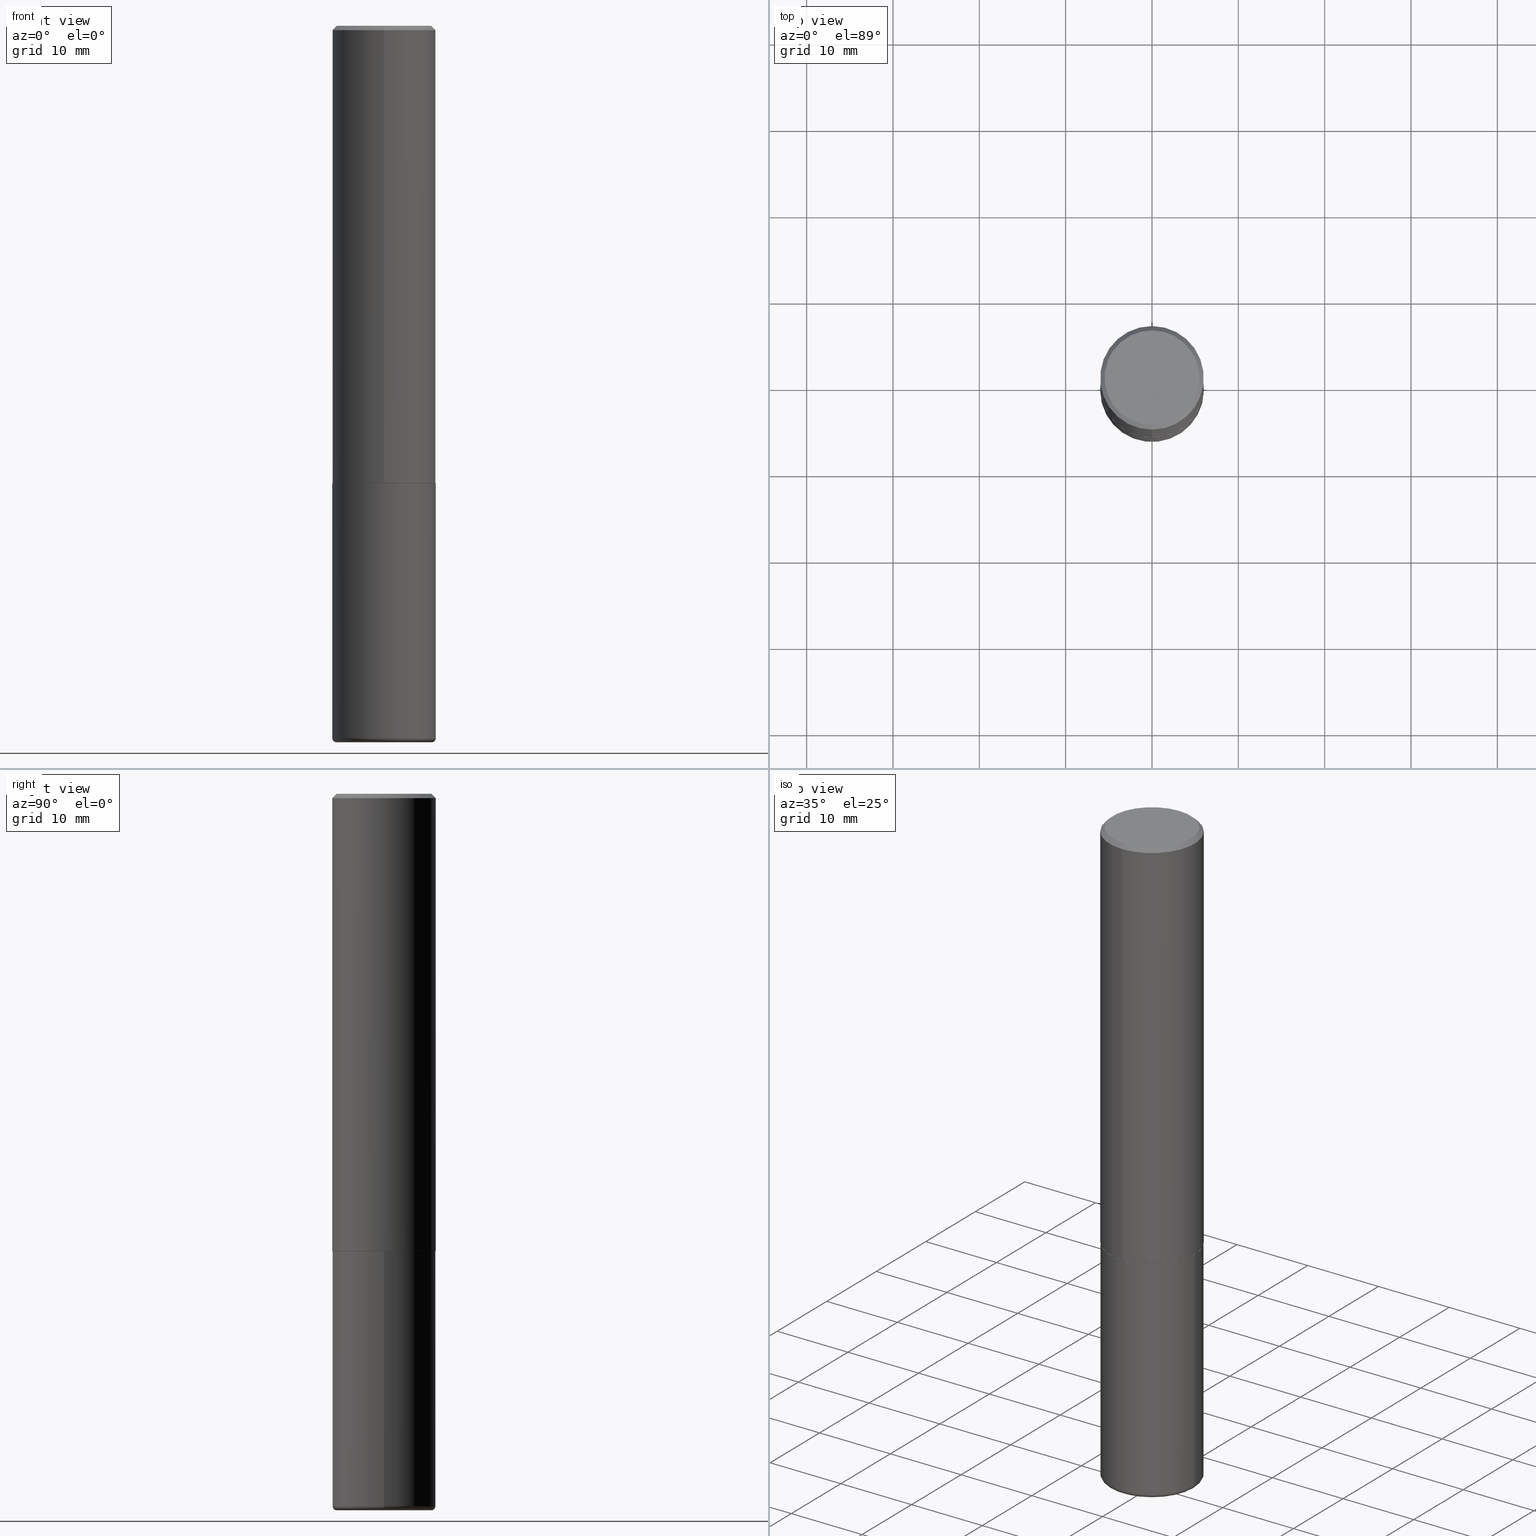
[diagram: canonical four-view strip — front | top / right | iso, engineering-drawing reading convention]
A machine part, canonical four-view strip (front | top / right | iso — engineering-drawing reading convention). The complete STEP part file that produces these views, byte-faithful:
ISO-10303-21;
HEADER;
FILE_DESCRIPTION (( 'STEP AP203' ),
    '1' );
FILE_NAME ('74436.STEP',
    '2024-03-06T15:13:54',
    ( '' ),
    ( '' ),
    'SwSTEP 2.0',
    'SolidWorks 2023',
    '' );
FILE_SCHEMA (( 'CONFIG_CONTROL_DESIGN' ));
ENDSEC;

DATA;
#1 = DATE_AND_TIME ( #290, #258 ) ;
#2 = DIRECTION ( 'NONE',  ( -2.445143257281760563E-29, 3.491947543401872647E-15, 1.000000000000000000 ) ) ;
#3 = DIRECTION ( 'NONE',  ( -1.000000000000000000, 6.982962677686265922E-15, -4.876176775795935793E-29 ) ) ;
#4 = EDGE_CURVE ( 'NONE', #381, #142, #44, .T. ) ;
#5 = DATE_TIME_ROLE ( 'classification_date' ) ;
#6 = DIRECTION ( 'NONE',  ( 6.982962677686265922E-15, 1.000000000000000000, -3.491947543401873041E-15 ) ) ;
#7 = PLANE ( 'NONE',  #184 ) ;
#8 = DIRECTION ( 'NONE',  ( -6.982962677686266711E-15, -1.000000000000000000, 3.491481338843145583E-15 ) ) ;
#9 = ORIENTED_EDGE ( 'NONE', *, *, #202, .T. ) ;
#10 = CC_DESIGN_DATE_AND_TIME_ASSIGNMENT ( #235, #5, ( #307 ) ) ;
#11 = AXIS2_PLACEMENT_3D ( 'NONE', #412, #222, #58 ) ;
#12 = VECTOR ( 'NONE', #373, 39.37007874015748143 ) ;
#13 = ORIENTED_EDGE ( 'NONE', *, *, #16, .F. ) ;
#14 = APPROVAL_STATUS ( 'not_yet_approved' ) ;
#15 = VERTEX_POINT ( 'NONE', #399 ) ;
#16 = EDGE_CURVE ( 'NONE', #340, #116, #364, .T. ) ;
#17 = APPLICATION_CONTEXT ( 'configuration controlled 3d designs of mechanical parts and assemblies' ) ;
#18 = ORIENTED_EDGE ( 'NONE', *, *, #283, .F. ) ;
#19 = CIRCLE ( 'NONE', #302, 0.2361999999999999933 ) ;
#20 = PERSON_AND_ORGANIZATION ( #150, #234 ) ;
#21 = DIRECTION ( 'NONE',  ( -6.982962677686265922E-15, -1.000000000000000000, 3.469747663417773452E-15 ) ) ;
#22 = CALENDAR_DATE ( 2024, 6, 3 ) ;
#23 = ORIENTED_EDGE ( 'NONE', *, *, #60, .F. ) ;
#24 = CARTESIAN_POINT ( 'NONE',  ( 1.579546157692632438E-15, 0.2161999999999996980, -5.072845410320630762E-16 ) ) ;
#25 = CARTESIAN_POINT ( 'NONE',  ( -0.2361999999999999933, -7.634526233230966520E-15, -2.086600000000000232 ) ) ;
#26 = VECTOR ( 'NONE', #225, 39.37007874015748143 ) ;
#27 = ORIENTED_EDGE ( 'NONE', *, *, #360, .T. ) ;
#28 = DIRECTION ( 'NONE',  ( 1.000000000000000000, -6.982962677686265133E-15, 0.000000000000000000 ) ) ;
#29 = CARTESIAN_POINT ( 'NONE',  ( 5.102715210985906276E-29, -7.285324961630107416E-15, -2.086600000000000232 ) ) ;
#30 = EDGE_CURVE ( 'NONE', #15, #281, #240, .T. ) ;
#31 = EDGE_LOOP ( 'NONE', ( #158, #145, #130, #156 ) ) ;
#32 = CONICAL_SURFACE ( 'NONE', #366, 0.2361999999999999655, 0.7853981633974473908 ) ;
#33 = APPROVAL_DATE_TIME ( #152, #140 ) ;
#34 = CARTESIAN_POINT ( 'NONE',  ( -1.642392821791758643E-15, -0.2352000000000072644, -2.086599999999998900 ) ) ;
#35 = FACE_OUTER_BOUND ( 'NONE', #301, .T. ) ;
#36 = CARTESIAN_POINT ( 'NONE',  ( 0.2164999999999999980, -1.292092499065682533E-14, -3.267700000000000937 ) ) ;
#37 = PERSON_AND_ORGANIZATION ( #150, #234 ) ;
#38 = AXIS2_PLACEMENT_3D ( 'NONE', #89, #408, #80 ) ;
#39 = CARTESIAN_POINT ( 'NONE',  ( 5.102035920644121054E-29, -7.286297744062347012E-15, -2.086599999999999788 ) ) ;
#40 = CC_DESIGN_PERSON_AND_ORGANIZATION_ASSIGNMENT ( #323, #141, ( #129 ) ) ;
#41 = EDGE_LOOP ( 'NONE', ( #182, #335 ) ) ;
#42 = LINE ( 'NONE', #212, #162 ) ;
#43 = DIRECTION ( 'NONE',  ( -2.445143257281760563E-29, 3.491947543401872647E-15, 1.000000000000000000 ) ) ;
#44 = CIRCLE ( 'NONE', #353, 0.01970000000000016877 ) ;
#45 = AXIS2_PLACEMENT_3D ( 'NONE', #269, #306, #81 ) ;
#46 = VERTEX_POINT ( 'NONE', #75 ) ;
#47 = DIRECTION ( 'NONE',  ( 2.438088387897960049E-29, -3.491481338843145188E-15, -1.000000000000000000 ) ) ;
#48 = EDGE_CURVE ( 'NONE', #367, #116, #213, .T. ) ;
#49 = CARTESIAN_POINT ( 'NONE',  ( 0.2361999999999999933, -1.649375784469496131E-15, 1.151752954443000088E-29 ) ) ;
#50 = CARTESIAN_POINT ( 'NONE',  ( -0.2362000000000000766, -9.662029446697182017E-15, -3.248000000000000220 ) ) ;
#51 = AXIS2_PLACEMENT_3D ( 'NONE', #291, #2, #203 ) ;
#52 = APPROVAL_PERSON_ORGANIZATION ( #232, #239, #74 ) ;
#53 = DIMENSIONAL_EXPONENTS ( 1.000000000000000000, 0.000000000000000000, 0.000000000000000000, 0.000000000000000000, 0.000000000000000000, 0.000000000000000000, 0.000000000000000000 ) ;
#54 = ORIENTED_EDGE ( 'NONE', *, *, #266, .F. ) ;
#55 = DIRECTION ( 'NONE',  ( 1.000000000000000000, -6.982962677686267499E-15, 0.000000000000000000 ) ) ;
#56 = ADVANCED_FACE ( 'NONE', ( #223 ), #186, .T. ) ;
#57 = CARTESIAN_POINT ( 'NONE',  ( 7.942882682489324976E-29, -1.134033138856253841E-14, -3.248000000000000220 ) ) ;
#58 = DIRECTION ( 'NONE',  ( -6.982962677686265922E-15, -1.000000000000000000, 3.491947543401872647E-15 ) ) ;
#59 = LOCAL_TIME ( 10, 13, 54.00000000000000000, #386 ) ;
#60 = EDGE_CURVE ( 'NONE', #46, #281, #64, .T. ) ;
#61 = DIRECTION ( 'NONE',  ( -6.982962677686265133E-15, -1.000000000000000000, 3.484499991918703113E-15 ) ) ;
#62 = DIRECTION ( 'NONE',  ( -6.982962677686265133E-15, -1.000000000000000000, 3.484499991918703113E-15 ) ) ;
#63 = DIRECTION ( 'NONE',  ( -2.445143257281760563E-29, 3.491947543401872647E-15, 1.000000000000000000 ) ) ;
#64 = CIRCLE ( 'NONE', #393, 0.2361999999999999655 ) ;
#65 = TOROIDAL_SURFACE ( 'NONE', #38, 0.2164999999999999980, 0.01970000000000016877 ) ;
#66 = CALENDAR_DATE ( 2024, 6, 3 ) ;
#67 = FACE_OUTER_BOUND ( 'NONE', #220, .T. ) ;
#68 = FACE_OUTER_BOUND ( 'NONE', #110, .T. ) ;
#69 = DATE_TIME_ROLE ( 'creation_date' ) ;
#70 = CARTESIAN_POINT ( 'NONE',  ( 7.942882682489324976E-29, -1.134033138856253841E-14, -3.248000000000000220 ) ) ;
#71 = CIRCLE ( 'NONE', #286, 0.2361999999999999933 ) ;
#72 = ADVANCED_FACE ( 'NONE', ( #318 ), #161, .T. ) ;
#73 = ORIENTED_EDGE ( 'NONE', *, *, #376, .F. ) ;
#74 = APPROVAL_ROLE ( '' ) ;
#75 = CARTESIAN_POINT ( 'NONE',  ( 1.649375784469496131E-15, 0.2361999999999998823, -0.02000000000000087472 ) ) ;
#76 = APPLICATION_CONTEXT ( 'configuration controlled 3d designs of mechanical parts and assemblies' ) ;
#77 = APPLICATION_PROTOCOL_DEFINITION ( 'international standard', 'config_control_design', 1994, #17 ) ;
#78 = ORIENTED_EDGE ( 'NONE', *, *, #170, .F. ) ;
#79 = ORIENTED_EDGE ( 'NONE', *, *, #344, .T. ) ;
#80 = DIRECTION ( 'NONE',  ( 1.000000000000000000, -6.982962677686267499E-15, 4.883557194083113462E-29 ) ) ;
#81 = DIRECTION ( 'NONE',  ( 1.000000000000000000, 0.000000000000000000, 0.000000000000000000 ) ) ;
#82 = ORIENTED_EDGE ( 'NONE', *, *, #299, .T. ) ;
#83 = DIRECTION ( 'NONE',  ( -6.982962677686265922E-15, -1.000000000000000000, 3.487819265831412139E-15 ) ) ;
#84 = EDGE_CURVE ( 'NONE', #381, #181, #128, .T. ) ;
#85 = ORIENTED_EDGE ( 'NONE', *, *, #376, .T. ) ;
#86 = CARTESIAN_POINT ( 'NONE',  ( -0.2164999999999999980, -9.802006365641922115E-15, -3.248000000000000220 ) ) ;
#87 = DIRECTION ( 'NONE',  ( -2.445143257281760563E-29, 3.491947543401872647E-15, 1.000000000000000000 ) ) ;
#88 = EDGE_CURVE ( 'NONE', #190, #107, #191, .T. ) ;
#89 = CARTESIAN_POINT ( 'NONE',  ( 7.942882682489324976E-29, -1.134033138856253841E-14, -3.248000000000000220 ) ) ;
#90 = CLOSED_SHELL ( 'NONE', ( #244, #218, #270, #118, #124, #396 ) ) ;
#91 = CC_DESIGN_APPROVAL ( #140, ( #329 ) ) ;
#92 = APPROVAL_PERSON_ORGANIZATION ( #361, #338, #101 ) ;
#93 = EDGE_LOOP ( 'NONE', ( #245, #85, #9, #23 ) ) ;
#94 = DIRECTION ( 'NONE',  ( 1.000000000000000000, -6.982962677686266711E-15, 4.876176775795936353E-29 ) ) ;
#95 = PERSON_AND_ORGANIZATION ( #150, #234 ) ;
#96 = PLANE ( 'NONE',  #371 ) ;
#97 = PLANE ( 'NONE',  #179 ) ;
#98 = AXIS2_PLACEMENT_3D ( 'NONE', #332, #43, #21 ) ;
#99 = CONICAL_SURFACE ( 'NONE', #400, 0.2361999999999999655, 0.7853981633974473908 ) ;
#100 = ORIENTED_EDGE ( 'NONE', *, *, #169, .F. ) ;
#101 = APPROVAL_ROLE ( '' ) ;
#102 = PLANE ( 'NONE',  #185 ) ;
#103 = FACE_OUTER_BOUND ( 'NONE', #372, .T. ) ;
#104 = ADVANCED_FACE ( 'NONE', ( #341 ), #410, .T. ) ;
#105 = DIRECTION ( 'NONE',  ( 1.000000000000000000, -6.982962677686268288E-15, 0.000000000000000000 ) ) ;
#106 = VECTOR ( 'NONE', #368, 39.37007874015748143 ) ;
#107 = VERTEX_POINT ( 'NONE', #151 ) ;
#108 = VECTOR ( 'NONE', #131, 39.37007874015748143 ) ;
#109 = CARTESIAN_POINT ( 'NONE',  ( 1.671196514507806268E-15, 0.2351999999999927204, -2.086600000000000676 ) ) ;
#110 = EDGE_LOOP ( 'NONE', ( #401, #310, #54, #177 ) ) ;
#111 = MECHANICAL_CONTEXT ( 'NONE', #76, 'mechanical' ) ;
#112 = VERTEX_POINT ( 'NONE', #24 ) ;
#113 = DIRECTION ( 'NONE',  ( 1.000000000000000000, -6.982962677686267499E-15, 0.000000000000000000 ) ) ;
#114 = ORIENTED_EDGE ( 'NONE', *, *, #197, .T. ) ;
#115 = AXIS2_PLACEMENT_3D ( 'NONE', #121, #416, #251 ) ;
#116 = VERTEX_POINT ( 'NONE', #276 ) ;
#117 = LENGTH_MEASURE_WITH_UNIT ( LENGTH_MEASURE( 0.02539999999999999897 ), #402 );
#118 = ADVANCED_FACE ( 'NONE', ( #253 ), #311, .T. ) ;
#119 = LINE ( 'NONE', #382, #339 ) ;
#120 = ORIENTED_EDGE ( 'NONE', *, *, #60, .T. ) ;
#121 = CARTESIAN_POINT ( 'NONE',  ( 4.890286514563534438E-31, -6.983895086803762550E-17, -0.02000000000000005246 ) ) ;
#122 = VECTOR ( 'NONE', #166, 39.37007874015748143 ) ;
#123 = FACE_OUTER_BOUND ( 'NONE', #289, .T. ) ;
#124 = ADVANCED_FACE ( 'NONE', ( #159 ), #65, .T. ) ;
#125 = DIRECTION ( 'NONE',  ( 1.000000000000000000, -6.982962677686266711E-15, 4.876176775795936353E-29 ) ) ;
#126 = VERTEX_POINT ( 'NONE', #50 ) ;
#127 = DIRECTION ( 'NONE',  ( -1.000000000000000000, 7.105427357600963993E-15, 0.000000000000000000 ) ) ;
#128 = CIRCLE ( 'NONE', #263, 0.2164999999999999980 ) ;
#129 = PRODUCT_DEFINITION_FORMATION_WITH_SPECIFIED_SOURCE ( 'ANY', '', #351, .NOT_KNOWN. ) ;
#130 = ORIENTED_EDGE ( 'NONE', *, *, #183, .F. ) ;
#131 = DIRECTION ( 'NONE',  ( 4.937700262164543309E-15, 0.7071067811865444641, -0.7071067811865505703 ) ) ;
#132 = EDGE_CURVE ( 'NONE', #116, #46, #119, .T. ) ;
#133 = CARTESIAN_POINT ( 'NONE',  ( -1.649375784469446630E-15, -0.2362000000000075151, -2.085599999999999010 ) ) ;
#134 = COORDINATED_UNIVERSAL_TIME_OFFSET ( 5, 0, .BEHIND. ) ;
#135 = FACE_OUTER_BOUND ( 'NONE', #41, .T. ) ;
#136 = MANIFOLD_SOLID_BREP ( 'Body-Move/Copy2[2]', #285 ) ;
#137 = TOROIDAL_SURFACE ( 'NONE', #221, 0.2164999999999999980, 0.01970000000000016877 ) ;
#138 = PERSON_AND_ORGANIZATION_ROLE ( 'classification_officer' ) ;
#139 = FACE_OUTER_BOUND ( 'NONE', #31, .T. ) ;
#140 = APPROVAL ( #14, 'UNSPECIFIED' ) ;
#141 = PERSON_AND_ORGANIZATION_ROLE ( 'creator' ) ;
#142 = VERTEX_POINT ( 'NONE', #155 ) ;
#143 = DIRECTION ( 'NONE',  ( -2.445468806185136877E-29, 3.491481338843145188E-15, 1.000000000000000000 ) ) ;
#144 = APPROVAL_ROLE ( '' ) ;
#145 = ORIENTED_EDGE ( 'NONE', *, *, #170, .T. ) ;
#146 = LINE ( 'NONE', #49, #12 ) ;
#147 = CIRCLE ( 'NONE', #207, 0.2361999999999999933 ) ;
#148 = CC_DESIGN_PERSON_AND_ORGANIZATION_ASSIGNMENT ( #95, #288, ( #329 ) ) ;
#149 = PERSON_AND_ORGANIZATION_ROLE ( 'design_owner' ) ;
#150 = PERSON ( 'UNSPECIFIED', 'UNSPECIFIED', 'UNSPECIFIED', ('UNSPECIFIED'), ('UNSPECIFIED'), ('UNSPECIFIED') ) ;
#151 = CARTESIAN_POINT ( 'NONE',  ( 0.2361999999999999933, -8.934700746099602364E-15, -2.086600000000000232 ) ) ;
#152 = DATE_AND_TIME ( #22, #59 ) ;
#153 = ORIENTED_EDGE ( 'NONE', *, *, #417, .F. ) ;
#154 = DIRECTION ( 'NONE',  ( 1.000000000000000000, -6.982962677686265133E-15, 0.000000000000000000 ) ) ;
#155 = CARTESIAN_POINT ( 'NONE',  ( 0.2362000000000000766, -1.298970717303203651E-14, -3.248000000000000220 ) ) ;
#156 = ORIENTED_EDGE ( 'NONE', *, *, #4, .F. ) ;
#157 = DIRECTION ( 'NONE',  ( -2.445143257281760563E-29, 3.491947543401872647E-15, 1.000000000000000000 ) ) ;
#158 = ORIENTED_EDGE ( 'NONE', *, *, #84, .T. ) ;
#159 = FACE_OUTER_BOUND ( 'NONE', #409, .T. ) ;
#160 = LINE ( 'NONE', #395, #108 ) ;
#161 = CONICAL_SURFACE ( 'NONE', #313, 0.2351999999999999924, 0.7853981633976704346 ) ;
#162 = VECTOR ( 'NONE', #143, 39.37007874015748143 ) ;
#163 = PRODUCT_RELATED_PRODUCT_CATEGORY ( 'detail', '', ( #351 ) ) ;
#164 = ADVANCED_FACE ( 'NONE', ( #123 ), #315, .T. ) ;
#165 = APPROVAL_DATE_TIME ( #292, #338 ) ;
#166 = DIRECTION ( 'NONE',  ( -4.937700262165644559E-15, -0.7071067811867021158, 0.7071067811863929187 ) ) ;
#167 = DIRECTION ( 'NONE',  ( -2.445468806185136597E-29, 3.491481338843145583E-15, 1.000000000000000000 ) ) ;
#168 = FACE_OUTER_BOUND ( 'NONE', #248, .T. ) ;
#169 = EDGE_CURVE ( 'NONE', #281, #46, #380, .T. ) ;
#170 = EDGE_CURVE ( 'NONE', #181, #126, #330, .T. ) ;
#171 = AXIS2_PLACEMENT_3D ( 'NONE', #362, #63, #295 ) ;
#172 = LOCAL_TIME ( 10, 13, 54.00000000000000000, #363 ) ;
#173 = DATE_AND_TIME ( #260, #388 ) ;
#174 = DIRECTION ( 'NONE',  ( -6.982962677686265922E-15, -1.000000000000000000, 3.491947543401873041E-15 ) ) ;
#175 = COORDINATED_UNIVERSAL_TIME_OFFSET ( 5, 0, .BEHIND. ) ;
#176 = CARTESIAN_POINT ( 'NONE',  ( 0.2164999999999999980, -1.285214280828161572E-14, -3.248000000000000220 ) ) ;
#177 = ORIENTED_EDGE ( 'NONE', *, *, #406, .F. ) ;
#178 = CARTESIAN_POINT ( 'NONE',  ( -1.620449627073634881E-15, -0.2362000000000000210, -0.01999999999999922673 ) ) ;
#179 = AXIS2_PLACEMENT_3D ( 'NONE', #196, #319, #6 ) ;
#180 = PERSON_AND_ORGANIZATION ( #150, #234 ) ;
#181 = VERTEX_POINT ( 'NONE', #224 ) ;
#182 = ORIENTED_EDGE ( 'NONE', *, *, #360, .F. ) ;
#183 = EDGE_CURVE ( 'NONE', #142, #126, #71, .T. ) ;
#184 = AXIS2_PLACEMENT_3D ( 'NONE', #349, #47, #216 ) ;
#185 = AXIS2_PLACEMENT_3D ( 'NONE', #259, #201, #3 ) ;
#186 = CYLINDRICAL_SURFACE ( 'NONE', #11, 0.2362000000000001043 ) ;
#187 = ORIENTED_EDGE ( 'NONE', *, *, #88, .F. ) ;
#188 = DIRECTION ( 'NONE',  ( -2.445143257281760563E-29, 3.491947543401872647E-15, 1.000000000000000000 ) ) ;
#189 = DIRECTION ( 'NONE',  ( -2.445468806185136597E-29, 3.491481338843145583E-15, 1.000000000000000000 ) ) ;
#190 = VERTEX_POINT ( 'NONE', #25 ) ;
#191 = CIRCLE ( 'NONE', #250, 0.2361999999999999933 ) ;
#192 = DIRECTION ( 'NONE',  ( -2.445143257281760843E-29, 3.491947543401873041E-15, 1.000000000000000000 ) ) ;
#193 = AXIS2_PLACEMENT_3D ( 'NONE', #86, #219, #127 ) ;
#194 = VERTEX_POINT ( 'NONE', #280 ) ;
#195 = CARTESIAN_POINT ( 'NONE',  ( 7.991058417971172834E-29, -1.140911357093774960E-14, -3.267700000000000937 ) ) ;
#196 = CARTESIAN_POINT ( 'NONE',  ( 1.509716530915768548E-15, 0.2161999999999996980, -6.311217999577736163E-16 ) ) ;
#197 = EDGE_CURVE ( 'NONE', #126, #142, #19, .T. ) ;
#198 = LINE ( 'NONE', #34, #122 ) ;
#199 = CIRCLE ( 'NONE', #171, 0.2161999999999996980 ) ;
#200 = CALENDAR_DATE ( 2024, 6, 3 ) ;
#201 = DIRECTION ( 'NONE',  ( 2.438088387897960049E-29, -3.491481338843145188E-15, -1.000000000000000000 ) ) ;
#202 = EDGE_CURVE ( 'NONE', #367, #281, #282, .T. ) ;
#203 = DIRECTION ( 'NONE',  ( -6.982962677686265133E-15, -1.000000000000000000, 3.484499991918703113E-15 ) ) ;
#204 = APPROVAL_STATUS ( 'not_yet_approved' ) ;
#205 = PRODUCT_DEFINITION_SHAPE ( 'NONE', 'NONE',  #329 ) ;
#206 = DIRECTION ( 'NONE',  ( 1.000000000000000000, -6.982962677686267499E-15, 4.883557194083113462E-29 ) ) ;
#207 = AXIS2_PLACEMENT_3D ( 'NONE', #324, #167, #356 ) ;
#208 = ORIENTED_EDGE ( 'NONE', *, *, #169, .T. ) ;
#209 = DIRECTION ( 'NONE',  ( 5.024295867789177050E-15, 0.7071067811867068897, 0.7071067811863879227 ) ) ;
#210 = ADVANCED_BREP_SHAPE_REPRESENTATION ( '74436', ( #413, #136, #45 ), #411 ) ;
#211 = ADVANCED_FACE ( 'NONE', ( #287 ), #97, .F. ) ;
#212 = CARTESIAN_POINT ( 'NONE',  ( -0.2361999999999999933, 1.678301941865356591E-15, -1.161852468318208757E-29 ) ) ;
#213 = CIRCLE ( 'NONE', #98, 0.2362000000000002431 ) ;
#214 = ORIENTED_EDGE ( 'NONE', *, *, #132, .T. ) ;
#215 = AXIS2_PLACEMENT_3D ( 'NONE', #407, #246, #113 ) ;
#216 = DIRECTION ( 'NONE',  ( -1.000000000000000000, 6.982962677686265922E-15, -4.876176775795935793E-29 ) ) ;
#217 = ORIENTED_EDGE ( 'NONE', *, *, #16, .T. ) ;
#218 = ADVANCED_FACE ( 'NONE', ( #139 ), #137, .T. ) ;
#219 = DIRECTION ( 'NONE',  ( 7.105427357601001859E-15, 1.000000000000000000, -3.491481338843145583E-15 ) ) ;
#220 = EDGE_LOOP ( 'NONE', ( #238, #378 ) ) ;
#221 = AXIS2_PLACEMENT_3D ( 'NONE', #70, #389, #206 ) ;
#222 = DIRECTION ( 'NONE',  ( -2.445143257281760563E-29, 3.491947543401872647E-15, 1.000000000000000000 ) ) ;
#223 = FACE_OUTER_BOUND ( 'NONE', #93, .T. ) ;
#224 = CARTESIAN_POINT ( 'NONE',  ( -0.2164999999999999980, -9.766408997357155292E-15, -3.267700000000000937 ) ) ;
#225 = DIRECTION ( 'NONE',  ( -2.445143257281760843E-29, 3.491947543401873041E-15, 1.000000000000000000 ) ) ;
#226 = CIRCLE ( 'NONE', #346, 0.2161999999999996980 ) ;
#227 = CC_DESIGN_DATE_AND_TIME_ASSIGNMENT ( #173, #69, ( #329 ) ) ;
#228 = CARTESIAN_POINT ( 'NONE',  ( 4.890286514563534438E-31, -6.983895086803762550E-17, -0.02000000000000005246 ) ) ;
#229 = CARTESIAN_POINT ( 'NONE',  ( 5.102035920644122175E-29, -7.286297744062347012E-15, -2.086600000000000232 ) ) ;
#230 = COORDINATED_UNIVERSAL_TIME_OFFSET ( 5, 0, .BEHIND. ) ;
#231 = EDGE_LOOP ( 'NONE', ( #13, #79, #342, #73 ) ) ;
#232 = PERSON_AND_ORGANIZATION ( #150, #234 ) ;
#233 = DIRECTION ( 'NONE',  ( 6.982962677686265922E-15, 1.000000000000000000, -3.487819265831412139E-15 ) ) ;
#234 = ORGANIZATION ( 'UNSPECIFIED', 'UNSPECIFIED', '' ) ;
#235 = DATE_AND_TIME ( #200, #172 ) ;
#236 = DIRECTION ( 'NONE',  ( -2.445143257281760563E-29, 3.491947543401872647E-15, 1.000000000000000000 ) ) ;
#237 = DIRECTION ( 'NONE',  ( -2.445143257281760563E-29, 3.491947543401872647E-15, 1.000000000000000000 ) ) ;
#238 = ORIENTED_EDGE ( 'NONE', *, *, #266, .T. ) ;
#239 = APPROVAL ( #300, 'UNSPECIFIED' ) ;
#240 = LINE ( 'NONE', #178, #106 ) ;
#241 = EDGE_CURVE ( 'NONE', #112, #46, #160, .T. ) ;
#242 = ORIENTED_EDGE ( 'NONE', *, *, #283, .T. ) ;
#243 = ORIENTED_EDGE ( 'NONE', *, *, #48, .F. ) ;
#244 = ADVANCED_FACE ( 'NONE', ( #68 ), #320, .T. ) ;
#245 = ORIENTED_EDGE ( 'NONE', *, *, #132, .F. ) ;
#246 = DIRECTION ( 'NONE',  ( -2.445468806185136597E-29, 3.491481338843145583E-15, 1.000000000000000000 ) ) ;
#247 = LOCAL_TIME ( 10, 13, 54.00000000000000000, #175 ) ;
#248 = EDGE_LOOP ( 'NONE', ( #305, #153 ) ) ;
#249 = CARTESIAN_POINT ( 'NONE',  ( 4.890286514563534438E-31, -6.983895086803762550E-17, -0.02000000000000005246 ) ) ;
#250 = AXIS2_PLACEMENT_3D ( 'NONE', #29, #317, #154 ) ;
#251 = DIRECTION ( 'NONE',  ( -6.982962677686265922E-15, -1.000000000000000000, 3.487819265831412139E-15 ) ) ;
#252 = DIRECTION ( 'NONE',  ( -2.445468806185136597E-29, 3.491481338843145583E-15, 1.000000000000000000 ) ) ;
#253 = FACE_OUTER_BOUND ( 'NONE', #272, .T. ) ;
#254 = ADVANCED_FACE ( 'NONE', ( #103 ), #32, .T. ) ;
#255 = EDGE_LOOP ( 'NONE', ( #82, #242 ) ) ;
#256 = CARTESIAN_POINT ( 'NONE',  ( 4.890286514563534438E-31, -6.983895086803762550E-17, -0.02000000000000005246 ) ) ;
#257 = AXIS2_PLACEMENT_3D ( 'NONE', #377, #188, #379 ) ;
#258 = LOCAL_TIME ( 10, 13, 54.00000000000000000, #134 ) ;
#259 = CARTESIAN_POINT ( 'NONE',  ( 5.102715210985906276E-29, -7.285324961630107416E-15, -2.086600000000000232 ) ) ;
#260 = CALENDAR_DATE ( 2024, 6, 3 ) ;
#261 = CARTESIAN_POINT ( 'NONE',  ( 5.099590777386840224E-29, -7.282805796518945829E-15, -2.085599999999999898 ) ) ;
#262 = CARTESIAN_POINT ( 'NONE',  ( -1.620449627073634881E-15, -0.2362000000000000210, -0.01999999999999922673 ) ) ;
#263 = AXIS2_PLACEMENT_3D ( 'NONE', #195, #337, #55 ) ;
#264 = AXIS2_PLACEMENT_3D ( 'NONE', #39, #236, #62 ) ;
#265 = CARTESIAN_POINT ( 'NONE',  ( -6.055996773249123304E-45, 8.648664241745118212E-31, 2.476745178514206857E-16 ) ) ;
#266 = EDGE_CURVE ( 'NONE', #107, #190, #147, .T. ) ;
#267 = CIRCLE ( 'NONE', #215, 0.2164999999999999980 ) ;
#268 = ORIENTED_EDGE ( 'NONE', *, *, #299, .F. ) ;
#269 = CARTESIAN_POINT ( 'NONE',  ( 0.000000000000000000, 0.000000000000000000, 0.000000000000000000 ) ) ;
#270 = ADVANCED_FACE ( 'NONE', ( #67 ), #102, .F. ) ;
#271 = ORIENTED_EDGE ( 'NONE', *, *, #30, .T. ) ;
#272 = EDGE_LOOP ( 'NONE', ( #374, #114, #369, #187 ) ) ;
#273 = AXIS2_PLACEMENT_3D ( 'NONE', #397, #418, #94 ) ;
#274 =( NAMED_UNIT ( * ) PLANE_ANGLE_UNIT ( ) SI_UNIT ( $, .RADIAN. ) );
#275 = UNCERTAINTY_MEASURE_WITH_UNIT (LENGTH_MEASURE( 1.000000000000000082E-05 ), #304, 'distance_accuracy_value', 'NONE');
#276 = CARTESIAN_POINT ( 'NONE',  ( 1.678301941865383215E-15, 0.2361999999999929711, -2.085600000000000787 ) ) ;
#277 = CC_DESIGN_PERSON_AND_ORGANIZATION_ASSIGNMENT ( #20, #149, ( #351 ) ) ;
#278 = DIRECTION ( 'NONE',  ( -6.982962677686265133E-15, -1.000000000000000000, 3.484499991918703113E-15 ) ) ;
#279 = AXIS2_PLACEMENT_3D ( 'NONE', #343, #157, #278 ) ;
#280 = CARTESIAN_POINT ( 'NONE',  ( -1.642392821791758643E-15, -0.2352000000000072644, -2.086599999999998900 ) ) ;
#281 = VERTEX_POINT ( 'NONE', #262 ) ;
#282 = LINE ( 'NONE', #384, #26 ) ;
#283 = EDGE_CURVE ( 'NONE', #15, #112, #226, .T. ) ;
#284 = ORIENTED_EDGE ( 'NONE', *, *, #352, .F. ) ;
#285 = CLOSED_SHELL ( 'NONE', ( #164, #104, #254, #309, #56, #72, #316, #211 ) ) ;
#286 = AXIS2_PLACEMENT_3D ( 'NONE', #57, #189, #312 ) ;
#287 = FACE_OUTER_BOUND ( 'NONE', #255, .T. ) ;
#288 = PERSON_AND_ORGANIZATION_ROLE ( 'creator' ) ;
#289 = EDGE_LOOP ( 'NONE', ( #27, #217, #243, #284 ) ) ;
#290 = CALENDAR_DATE ( 2024, 6, 3 ) ;
#291 = CARTESIAN_POINT ( 'NONE',  ( 5.102035920644121054E-29, -7.286297744062347012E-15, -2.086599999999999788 ) ) ;
#292 = DATE_AND_TIME ( #66, #247 ) ;
#293 = DIRECTION ( 'NONE',  ( 2.445143257281760563E-29, -3.491947543401872647E-15, -1.000000000000000000 ) ) ;
#294 = PERSON_AND_ORGANIZATION ( #150, #234 ) ;
#295 = DIRECTION ( 'NONE',  ( -6.982962677686265922E-15, -1.000000000000000000, 3.491947543401872253E-15 ) ) ;
#296 = AXIS2_PLACEMENT_3D ( 'NONE', #414, #252, #125 ) ;
#297 = APPROVAL_DATE_TIME ( #1, #239 ) ;
#298 = DIRECTION ( 'NONE',  ( 6.982962677686265922E-15, 1.000000000000000000, -3.487819265831412139E-15 ) ) ;
#299 = EDGE_CURVE ( 'NONE', #112, #15, #199, .T. ) ;
#300 = APPROVAL_STATUS ( 'not_yet_approved' ) ;
#301 = EDGE_LOOP ( 'NONE', ( #348, #268, #331, #120 ) ) ;
#302 = AXIS2_PLACEMENT_3D ( 'NONE', #383, #345, #28 ) ;
#303 = CC_DESIGN_APPROVAL ( #239, ( #307 ) ) ;
#304 =( CONVERSION_BASED_UNIT ( 'INCH', #117 ) LENGTH_UNIT ( ) NAMED_UNIT ( #53 ) );
#305 = ORIENTED_EDGE ( 'NONE', *, *, #84, .F. ) ;
#306 = DIRECTION ( 'NONE',  ( 0.000000000000000000, 0.000000000000000000, 1.000000000000000000 ) ) ;
#307 = SECURITY_CLASSIFICATION ( '', '', #327 ) ;
#308 = DIRECTION ( 'NONE',  ( -2.445143257281760563E-29, 3.491947543401872647E-15, 1.000000000000000000 ) ) ;
#309 = ADVANCED_FACE ( 'NONE', ( #35 ), #99, .T. ) ;
#310 = ORIENTED_EDGE ( 'NONE', *, *, #403, .T. ) ;
#311 = CYLINDRICAL_SURFACE ( 'NONE', #296, 0.2361999999999999933 ) ;
#312 = DIRECTION ( 'NONE',  ( 1.000000000000000000, -6.982962677686265133E-15, 0.000000000000000000 ) ) ;
#313 = AXIS2_PLACEMENT_3D ( 'NONE', #347, #308, #61 ) ;
#314 = ORIENTED_EDGE ( 'NONE', *, *, #202, .F. ) ;
#315 = CONICAL_SURFACE ( 'NONE', #279, 0.2351999999999999924, 0.7853981633976704346 ) ;
#316 = ADVANCED_FACE ( 'NONE', ( #135 ), #96, .F. ) ;
#317 = DIRECTION ( 'NONE',  ( -2.445468806185136597E-29, 3.491481338843145583E-15, 1.000000000000000000 ) ) ;
#318 = FACE_OUTER_BOUND ( 'NONE', #231, .T. ) ;
#319 = DIRECTION ( 'NONE',  ( 2.445143257281760283E-29, -3.491947543401873041E-15, -1.000000000000000000 ) ) ;
#320 = CYLINDRICAL_SURFACE ( 'NONE', #273, 0.2361999999999999933 ) ;
#321 = CC_DESIGN_APPROVAL ( #338, ( #129 ) ) ;
#322 = CC_DESIGN_PERSON_AND_ORGANIZATION_ASSIGNMENT ( #37, #138, ( #307 ) ) ;
#323 = PERSON_AND_ORGANIZATION ( #150, #234 ) ;
#324 = CARTESIAN_POINT ( 'NONE',  ( 5.102715210985906276E-29, -7.285324961630107416E-15, -2.086600000000000232 ) ) ;
#325 = DIRECTION ( 'NONE',  ( -6.982962677686265922E-15, -1.000000000000000000, 3.469747663417773452E-15 ) ) ;
#326 = ORIENTED_EDGE ( 'NONE', *, *, #241, .F. ) ;
#327 = SECURITY_CLASSIFICATION_LEVEL ( 'unclassified' ) ;
#328 = DIRECTION ( 'NONE',  ( -2.445143257281760283E-29, 3.491947543401873041E-15, 1.000000000000000000 ) ) ;
#329 = PRODUCT_DEFINITION ( 'UNKNOWN', '', #129, #334 ) ;
#330 = CIRCLE ( 'NONE', #193, 0.01970000000000016877 ) ;
#331 = ORIENTED_EDGE ( 'NONE', *, *, #241, .T. ) ;
#332 = CARTESIAN_POINT ( 'NONE',  ( 5.099590777386840224E-29, -7.282805796518945829E-15, -2.085599999999999898 ) ) ;
#333 = CIRCLE ( 'NONE', #405, 0.2362000000000002431 ) ;
#334 = DESIGN_CONTEXT ( 'detailed design', #17, 'design' ) ;
#335 = ORIENTED_EDGE ( 'NONE', *, *, #344, .F. ) ;
#336 =( NAMED_UNIT ( * ) SI_UNIT ( $, .STERADIAN. ) SOLID_ANGLE_UNIT ( ) );
#337 = DIRECTION ( 'NONE',  ( -2.445468806185136597E-29, 3.491481338843145583E-15, 1.000000000000000000 ) ) ;
#338 = APPROVAL ( #204, 'UNSPECIFIED' ) ;
#339 = VECTOR ( 'NONE', #192, 39.37007874015748143 ) ;
#340 = VERTEX_POINT ( 'NONE', #350 ) ;
#341 = FACE_OUTER_BOUND ( 'NONE', #370, .T. ) ;
#342 = ORIENTED_EDGE ( 'NONE', *, *, #352, .T. ) ;
#343 = CARTESIAN_POINT ( 'NONE',  ( 5.102035920644121054E-29, -7.286297744062347012E-15, -2.086599999999999788 ) ) ;
#344 = EDGE_CURVE ( 'NONE', #340, #194, #365, .T. ) ;
#345 = DIRECTION ( 'NONE',  ( -2.445468806185136597E-29, 3.491481338843145583E-15, 1.000000000000000000 ) ) ;
#346 = AXIS2_PLACEMENT_3D ( 'NONE', #265, #237, #391 ) ;
#347 = CARTESIAN_POINT ( 'NONE',  ( 5.102035920644121054E-29, -7.286297744062347012E-15, -2.086599999999999788 ) ) ;
#348 = ORIENTED_EDGE ( 'NONE', *, *, #30, .F. ) ;
#349 = CARTESIAN_POINT ( 'NONE',  ( 2.232543125915028434E-29, -1.965563522349822115E-14, -3.267700000000000937 ) ) ;
#350 = CARTESIAN_POINT ( 'NONE',  ( 1.674749228186607758E-15, 0.2351999999999927204, -2.086600000000000676 ) ) ;
#351 = PRODUCT ( '74436', '74436', '', ( #111 ) ) ;
#352 = EDGE_CURVE ( 'NONE', #194, #367, #198, .T. ) ;
#353 = AXIS2_PLACEMENT_3D ( 'NONE', #176, #8, #105 ) ;
#354 = PERSON_AND_ORGANIZATION_ROLE ( 'design_supplier' ) ;
#355 = CIRCLE ( 'NONE', #51, 0.2351999999999999924 ) ;
#356 = DIRECTION ( 'NONE',  ( 1.000000000000000000, -6.982962677686265133E-15, 0.000000000000000000 ) ) ;
#357 = CC_DESIGN_SECURITY_CLASSIFICATION ( #307, ( #129 ) ) ;
#358 = SHAPE_DEFINITION_REPRESENTATION ( #205, #210 ) ;
#359 = DIRECTION ( 'NONE',  ( 2.445143257281760563E-29, -3.491947543401872647E-15, -1.000000000000000000 ) ) ;
#360 = EDGE_CURVE ( 'NONE', #194, #340, #355, .T. ) ;
#361 = PERSON_AND_ORGANIZATION ( #150, #234 ) ;
#362 = CARTESIAN_POINT ( 'NONE',  ( -6.055996773249123304E-45, 8.648664241745118212E-31, 2.476745178514206857E-16 ) ) ;
#363 = COORDINATED_UNIVERSAL_TIME_OFFSET ( 5, 0, .BEHIND. ) ;
#364 = LINE ( 'NONE', #109, #385 ) ;
#365 = CIRCLE ( 'NONE', #264, 0.2351999999999999924 ) ;
#366 = AXIS2_PLACEMENT_3D ( 'NONE', #228, #359, #233 ) ;
#367 = VERTEX_POINT ( 'NONE', #133 ) ;
#368 = DIRECTION ( 'NONE',  ( -4.851104656540959542E-15, -0.7071067811865493491, -0.7071067811865456854 ) ) ;
#369 = ORIENTED_EDGE ( 'NONE', *, *, #406, .T. ) ;
#370 = EDGE_LOOP ( 'NONE', ( #387, #214, #100, #314 ) ) ;
#371 = AXIS2_PLACEMENT_3D ( 'NONE', #229, #328, #174 ) ;
#372 = EDGE_LOOP ( 'NONE', ( #18, #271, #208, #326 ) ) ;
#373 = DIRECTION ( 'NONE',  ( -2.445468806185136877E-29, 3.491481338843145188E-15, 1.000000000000000000 ) ) ;
#374 = ORIENTED_EDGE ( 'NONE', *, *, #403, .F. ) ;
#375 = APPLICATION_PROTOCOL_DEFINITION ( 'international standard', 'config_control_design', 1994, #76 ) ;
#376 = EDGE_CURVE ( 'NONE', #116, #367, #333, .T. ) ;
#377 = CARTESIAN_POINT ( 'NONE',  ( 0.000000000000000000, 0.000000000000000000, 0.000000000000000000 ) ) ;
#378 = ORIENTED_EDGE ( 'NONE', *, *, #88, .T. ) ;
#379 = DIRECTION ( 'NONE',  ( -6.982962677686265922E-15, -1.000000000000000000, 3.491947543401872647E-15 ) ) ;
#380 = CIRCLE ( 'NONE', #115, 0.2361999999999999655 ) ;
#381 = VERTEX_POINT ( 'NONE', #36 ) ;
#382 = CARTESIAN_POINT ( 'NONE',  ( 1.678301941865357183E-15, 0.2362000000000001043, -8.247980097515226939E-16 ) ) ;
#383 = CARTESIAN_POINT ( 'NONE',  ( 7.942882682489324976E-29, -1.134033138856253841E-14, -3.248000000000000220 ) ) ;
#384 = CARTESIAN_POINT ( 'NONE',  ( -1.649375784469496722E-15, -0.2362000000000001043, 8.247980097515226939E-16 ) ) ;
#385 = VECTOR ( 'NONE', #209, 39.37007874015748854 ) ;
#386 = COORDINATED_UNIVERSAL_TIME_OFFSET ( 5, 0, .BEHIND. ) ;
#387 = ORIENTED_EDGE ( 'NONE', *, *, #48, .T. ) ;
#388 = LOCAL_TIME ( 10, 13, 54.00000000000000000, #230 ) ;
#389 = DIRECTION ( 'NONE',  ( -2.445468806185136597E-29, 3.491481338843145583E-15, 1.000000000000000000 ) ) ;
#390 = CC_DESIGN_PERSON_AND_ORGANIZATION_ASSIGNMENT ( #294, #354, ( #129 ) ) ;
#391 = DIRECTION ( 'NONE',  ( -6.982962677686265922E-15, -1.000000000000000000, 3.491947543401872253E-15 ) ) ;
#392 = DIRECTION ( 'NONE',  ( -2.445143257281760563E-29, 3.491947543401872647E-15, 1.000000000000000000 ) ) ;
#393 = AXIS2_PLACEMENT_3D ( 'NONE', #249, #87, #83 ) ;
#394 = APPROVAL_PERSON_ORGANIZATION ( #180, #140, #144 ) ;
#395 = CARTESIAN_POINT ( 'NONE',  ( 1.649375784469496131E-15, 0.2361999999999998823, -0.02000000000000087472 ) ) ;
#396 = ADVANCED_FACE ( 'NONE', ( #168 ), #7, .T. ) ;
#397 = CARTESIAN_POINT ( 'NONE',  ( 0.000000000000000000, 0.000000000000000000, 0.000000000000000000 ) ) ;
#398 = ORIENTED_EDGE ( 'NONE', *, *, #417, .T. ) ;
#399 = CARTESIAN_POINT ( 'NONE',  ( -1.551844647095918761E-15, -0.2161999999999996980, 1.002633576734904349E-15 ) ) ;
#400 = AXIS2_PLACEMENT_3D ( 'NONE', #256, #293, #298 ) ;
#401 = ORIENTED_EDGE ( 'NONE', *, *, #183, .T. ) ;
#402 =( LENGTH_UNIT ( ) NAMED_UNIT ( * ) SI_UNIT ( $, .METRE. ) );
#403 = EDGE_CURVE ( 'NONE', #126, #190, #42, .T. ) ;
#404 = ORIENTED_EDGE ( 'NONE', *, *, #197, .F. ) ;
#405 = AXIS2_PLACEMENT_3D ( 'NONE', #261, #392, #325 ) ;
#406 = EDGE_CURVE ( 'NONE', #142, #107, #146, .T. ) ;
#407 = CARTESIAN_POINT ( 'NONE',  ( 7.991058417971172834E-29, -1.140911357093774960E-14, -3.267700000000000937 ) ) ;
#408 = DIRECTION ( 'NONE',  ( -2.445468806185136597E-29, 3.491481338843145583E-15, 1.000000000000000000 ) ) ;
#409 = EDGE_LOOP ( 'NONE', ( #78, #398, #415, #404 ) ) ;
#410 = CYLINDRICAL_SURFACE ( 'NONE', #257, 0.2362000000000001043 ) ;
#411 =( GEOMETRIC_REPRESENTATION_CONTEXT ( 3 ) GLOBAL_UNCERTAINTY_ASSIGNED_CONTEXT ( ( #275 ) ) GLOBAL_UNIT_ASSIGNED_CONTEXT ( ( #304, #274, #336 ) ) REPRESENTATION_CONTEXT ( 'NONE', 'WORKASPACE' ) );
#412 = CARTESIAN_POINT ( 'NONE',  ( 0.000000000000000000, 0.000000000000000000, 0.000000000000000000 ) ) ;
#413 = MANIFOLD_SOLID_BREP ( 'Body-Move/Copy2[1]', #90 ) ;
#414 = CARTESIAN_POINT ( 'NONE',  ( 0.000000000000000000, 0.000000000000000000, 0.000000000000000000 ) ) ;
#415 = ORIENTED_EDGE ( 'NONE', *, *, #4, .T. ) ;
#416 = DIRECTION ( 'NONE',  ( -2.445143257281760563E-29, 3.491947543401872647E-15, 1.000000000000000000 ) ) ;
#417 = EDGE_CURVE ( 'NONE', #181, #381, #267, .T. ) ;
#418 = DIRECTION ( 'NONE',  ( -2.445468806185136597E-29, 3.491481338843145583E-15, 1.000000000000000000 ) ) ;
ENDSEC;
END-ISO-10303-21;
